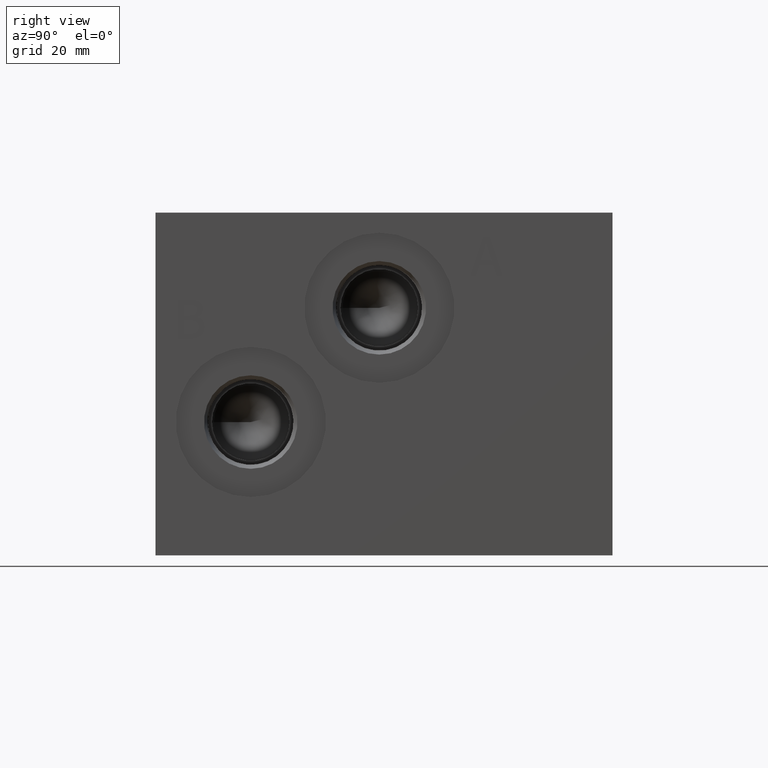
[diagram: clean part render]
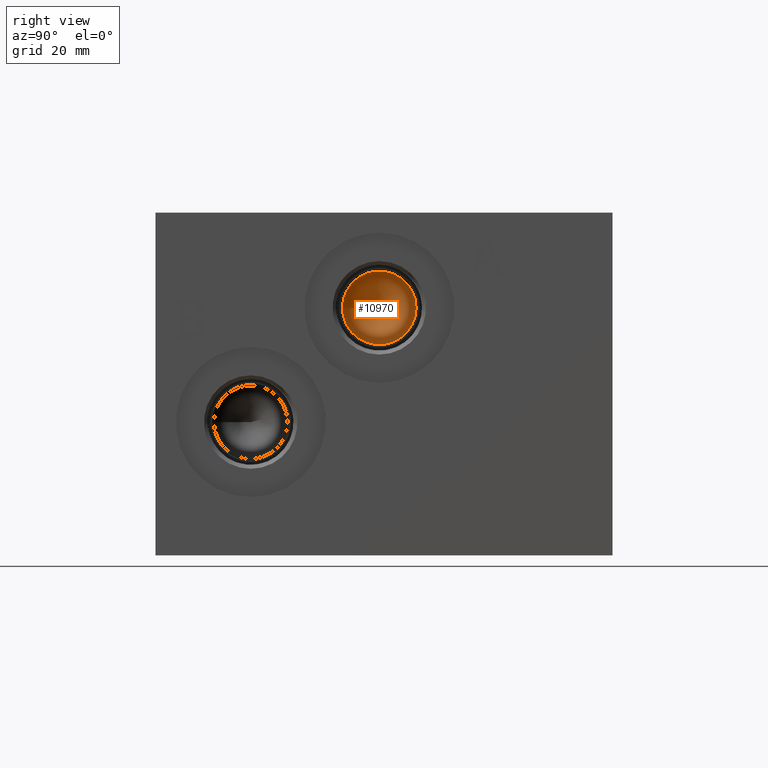
[diagram: same view with one face highlighted and labeled with its STEP entity id]
A machine part, right view. The second image highlights one B-rep face of the part: STEP entity #10970.
In plain terms, the highlighted conical surface has half-angle 60 deg.
Its self-contained STEP definition (entity closure, byte-faithful):
#31=CONICAL_SURFACE('',#11474,3.0734,1.0471975511966);
#192=CIRCLE('',#11475,6.1468);
#193=CIRCLE('',#11476,6.1468);
#1188=FACE_OUTER_BOUND('',#1804,.T.);
#1804=EDGE_LOOP('',(#9497,#9498,#9499,#9500));
#2849=LINE('',#18792,#3852);
#3852=VECTOR('',#13447,3.0734);
#5155=VERTEX_POINT('',#18788);
#5156=VERTEX_POINT('',#18789);
#5157=VERTEX_POINT('',#18791);
#6644=EDGE_CURVE('',#5155,#5156,#192,.T.);
#6645=EDGE_CURVE('',#5156,#5157,#2849,.T.);
#6646=EDGE_CURVE('',#5156,#5155,#193,.T.);
#9497=ORIENTED_EDGE('',*,*,#6644,.T.);
#9498=ORIENTED_EDGE('',*,*,#6645,.T.);
#9499=ORIENTED_EDGE('',*,*,#6645,.F.);
#9500=ORIENTED_EDGE('',*,*,#6646,.T.);
#10970=ADVANCED_FACE('',(#1188),#31,.F.);
#11474=AXIS2_PLACEMENT_3D('',#18787,#13443,#13444);
#11475=AXIS2_PLACEMENT_3D('',#18790,#13445,#13446);
#11476=AXIS2_PLACEMENT_3D('',#18793,#13448,#13449);
#13443=DIRECTION('center_axis',(1.,0.,0.));
#13444=DIRECTION('ref_axis',(0.,1.,0.));
#13445=DIRECTION('center_axis',(1.,0.,0.));
#13446=DIRECTION('ref_axis',(0.,1.,0.));
#13447=DIRECTION('',(-0.5,0.866025403784438,1.06057523872491E-16));
#13448=DIRECTION('center_axis',(1.,0.,0.));
#13449=DIRECTION('ref_axis',(0.,1.,0.));
#18787=CARTESIAN_POINT('Origin',(54.4618516826726,37.3126,41.275));
#18788=CARTESIAN_POINT('',(56.23628,43.4594,41.275));
#18789=CARTESIAN_POINT('',(56.23628,31.1658,41.275));
#18790=CARTESIAN_POINT('Origin',(56.23628,37.3126,41.275));
#18791=CARTESIAN_POINT('',(52.6874233653452,37.3126,41.275));
#18792=CARTESIAN_POINT('',(54.4618516826726,34.2392,41.275));
#18793=CARTESIAN_POINT('Origin',(56.23628,37.3126,41.275));